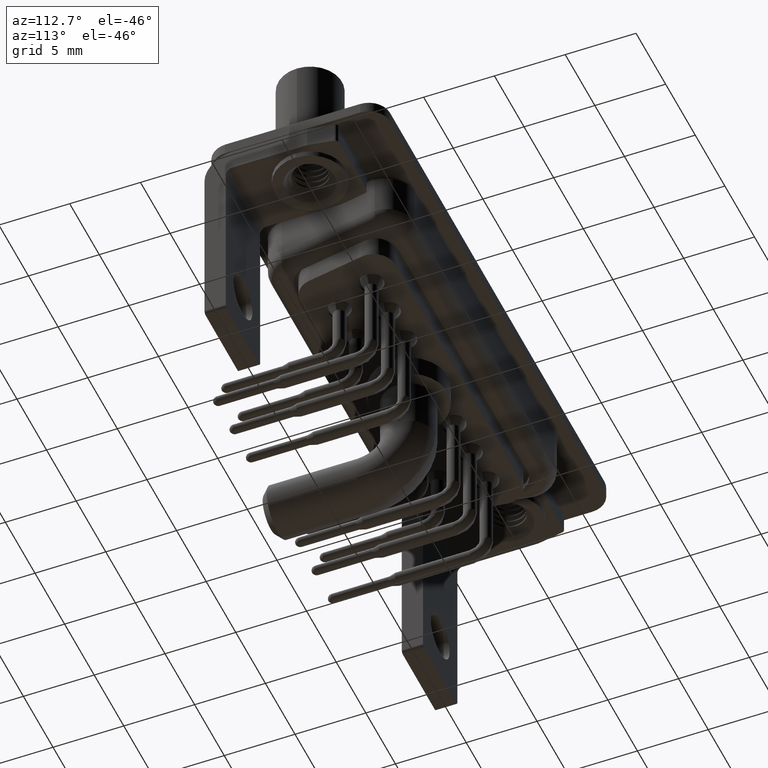
[diagram: clean part render]
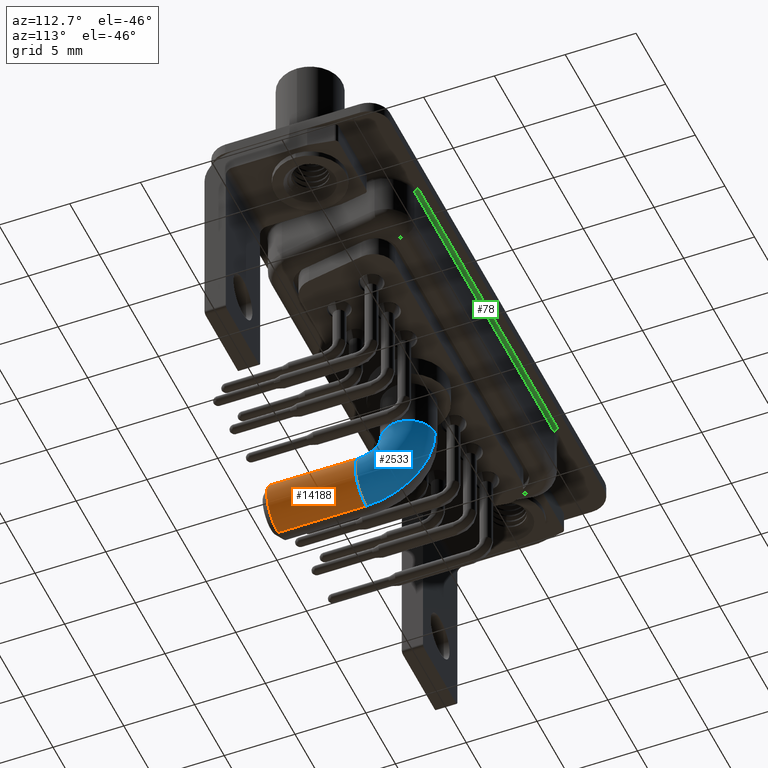
[diagram: same view with three faces highlighted in distinct colors, each labeled with its STEP entity id]
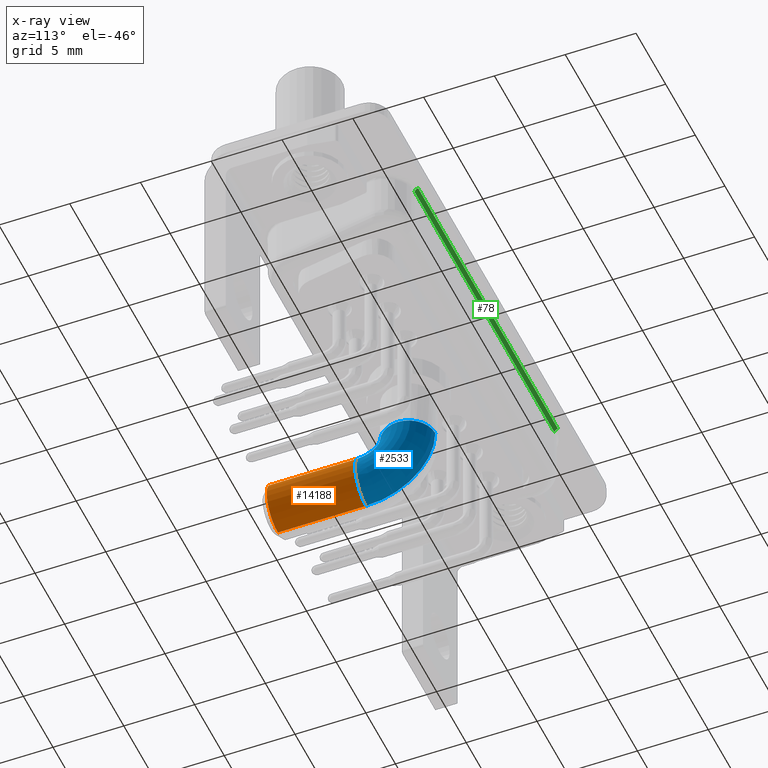
[diagram: x-ray of the same camera — body ghosted, the three highlighted faces saturated]
A machine part, auxiliary view with three faces highlighted in distinct colors.
The next image is the same camera in x-ray (body ghosted, the three faces saturated) — at least one of them is partly hidden behind the body in this view.
Their STEP definitions:

[orange] entity #14188 — the highlighted cylindrical surface (edge-blend (fillet) strip) has radius 1.875 mm, axis along (0, -1, 0).
#185 = CARTESIAN_POINT ( 'NONE',  ( 0.0000000000000000000, -2.999999999999999556, -6.500000000000000888 ) ) ;
#948 = CARTESIAN_POINT ( 'NONE',  ( 0.0000000000000000000, -9.249999999999994671, -8.375000000000000000 ) ) ;
#1247 = CIRCLE ( 'NONE', #11207, 1.875000000000000000 ) ;
#1754 = DIRECTION ( 'NONE',  ( 0.0000000000000000000, -1.000000000000000000, 0.0000000000000000000 ) ) ;
#1806 = AXIS2_PLACEMENT_3D ( 'NONE', #6255, #4747, #4966 ) ;
#3117 = VECTOR ( 'NONE', #1754, 1000.000000000000000 ) ;
#3439 = AXIS2_PLACEMENT_3D ( 'NONE', #185, #3850, #8352 ) ;
#3652 = DIRECTION ( 'NONE',  ( -1.000000000000000000, 0.0000000000000000000, 0.0000000000000000000 ) ) ;
#3850 = DIRECTION ( 'NONE',  ( 0.0000000000000000000, -1.000000000000000000, 0.0000000000000000000 ) ) ;
#4747 = DIRECTION ( 'NONE',  ( 0.0000000000000000000, 1.000000000000000000, 0.0000000000000000000 ) ) ;
#4966 = DIRECTION ( 'NONE',  ( 0.0000000000000000000, 0.0000000000000000000, -1.000000000000000000 ) ) ;
#5358 = DIRECTION ( 'NONE',  ( 0.0000000000000000000, -1.000000000000000000, -1.445602896647338917E-16 ) ) ;
#5463 = CARTESIAN_POINT ( 'NONE',  ( 0.0000000000000000000, -2.999999999999999112, -8.375000000000000000 ) ) ;
#6255 = CARTESIAN_POINT ( 'NONE',  ( 0.0000000000000000000, -9.249999999999994671, -6.500000000000000888 ) ) ;
#6430 = CARTESIAN_POINT ( 'NONE',  ( 2.296212748401286986E-16, -9.249999999999994671, -4.625000000000000888 ) ) ;
#7806 = ORIENTED_EDGE ( 'NONE', *, *, #19845, .F. ) ;
#8104 = LINE ( 'NONE', #17662, #15588 ) ;
#8352 = DIRECTION ( 'NONE',  ( 0.0000000000000000000, 0.0000000000000000000, -1.000000000000000000 ) ) ;
#8470 = CARTESIAN_POINT ( 'NONE',  ( 0.0000000000000000000, -2.999999999999999556, -6.500000000000000888 ) ) ;
#8471 = VERTEX_POINT ( 'NONE', #5463 ) ;
#9112 = LINE ( 'NONE', #18054, #3117 ) ;
#9942 = EDGE_CURVE ( 'NONE', #8471, #12702, #1247, .T. ) ;
#11081 = CIRCLE ( 'NONE', #1806, 1.875000000000000000 ) ;
#11146 = CARTESIAN_POINT ( 'NONE',  ( 2.296212748401286986E-16, -3.000000000000000000, -4.625000000000000888 ) ) ;
#11207 = AXIS2_PLACEMENT_3D ( 'NONE', #8470, #5358, #3652 ) ;
#11236 = DIRECTION ( 'NONE',  ( 0.0000000000000000000, -1.000000000000000000, 0.0000000000000000000 ) ) ;
#11315 = ORIENTED_EDGE ( 'NONE', *, *, #18404, .T. ) ;
#12702 = VERTEX_POINT ( 'NONE', #11146 ) ;
#14106 = EDGE_LOOP ( 'NONE', ( #17098, #20655, #11315, #7806 ) ) ;
#14188 = ADVANCED_FACE ( 'NONE', ( #18422 ), #20138, .T. ) ;
#14401 = EDGE_CURVE ( 'NONE', #12702, #18893, #9112, .T. ) ;
#15588 = VECTOR ( 'NONE', #11236, 1000.000000000000000 ) ;
#17098 = ORIENTED_EDGE ( 'NONE', *, *, #9942, .T. ) ;
#17662 = CARTESIAN_POINT ( 'NONE',  ( 0.0000000000000000000, -2.999999999999999556, -8.375000000000000000 ) ) ;
#18054 = CARTESIAN_POINT ( 'NONE',  ( 2.296212748401286986E-16, -2.999999999999999556, -4.625000000000000888 ) ) ;
#18404 = EDGE_CURVE ( 'NONE', #18893, #20537, #11081, .T. ) ;
#18422 = FACE_OUTER_BOUND ( 'NONE', #14106, .T. ) ;
#18893 = VERTEX_POINT ( 'NONE', #6430 ) ;
#19845 = EDGE_CURVE ( 'NONE', #8471, #20537, #8104, .T. ) ;
#20138 = CYLINDRICAL_SURFACE ( 'NONE', #3439, 1.875000000000000000 ) ;
#20537 = VERTEX_POINT ( 'NONE', #948 ) ;
#20655 = ORIENTED_EDGE ( 'NONE', *, *, #14401, .T. ) ;

[blue] entity #2533 — the highlighted toroidal blend (fillet) surface has major radius 3 mm and minor (blend) radius 1.875 mm.
#157 = EDGE_CURVE ( 'NONE', #268, #12702, #8166, .T. ) ;
#268 = VERTEX_POINT ( 'NONE', #7605 ) ;
#443 = DIRECTION ( 'NONE',  ( -1.000000000000000000, -0.0000000000000000000, 0.0000000000000000000 ) ) ;
#515 = ORIENTED_EDGE ( 'NONE', *, *, #17521, .F. ) ;
#778 = AXIS2_PLACEMENT_3D ( 'NONE', #5198, #11656, #4990 ) ;
#1098 = CIRCLE ( 'NONE', #13115, 4.875000000000000888 ) ;
#1247 = CIRCLE ( 'NONE', #11207, 1.875000000000000000 ) ;
#2039 = AXIS2_PLACEMENT_3D ( 'NONE', #5505, #17184, #20386 ) ;
#2239 = ORIENTED_EDGE ( 'NONE', *, *, #9942, .F. ) ;
#2259 = DIRECTION ( 'NONE',  ( 0.0000000000000000000, 0.0000000000000000000, 1.000000000000000000 ) ) ;
#2533 = ADVANCED_FACE ( 'NONE', ( #20184 ), #11303, .T. ) ;
#3198 = CIRCLE ( 'NONE', #778, 1.875000000000000000 ) ;
#3652 = DIRECTION ( 'NONE',  ( -1.000000000000000000, 0.0000000000000000000, 0.0000000000000000000 ) ) ;
#4166 = CARTESIAN_POINT ( 'NONE',  ( 1.875000000000000000, 2.296212748401286986E-16, -3.499999999999999556 ) ) ;
#4990 = DIRECTION ( 'NONE',  ( -1.000000000000000000, 0.0000000000000000000, 0.0000000000000000000 ) ) ;
#5198 = CARTESIAN_POINT ( 'NONE',  ( 0.0000000000000000000, 0.0000000000000000000, -3.499999999999999556 ) ) ;
#5358 = DIRECTION ( 'NONE',  ( 0.0000000000000000000, -1.000000000000000000, -1.445602896647338917E-16 ) ) ;
#5463 = CARTESIAN_POINT ( 'NONE',  ( 0.0000000000000000000, -2.999999999999999112, -8.375000000000000000 ) ) ;
#5505 = CARTESIAN_POINT ( 'NONE',  ( 0.0000000000000000000, -3.000000000000000000, -3.499999999999999556 ) ) ;
#6995 = DIRECTION ( 'NONE',  ( 0.0000000000000000000, 0.0000000000000000000, 1.000000000000000000 ) ) ;
#7556 = EDGE_CURVE ( 'NONE', #20693, #16030, #3198, .T. ) ;
#7605 = CARTESIAN_POINT ( 'NONE',  ( 2.296212748401287479E-16, -1.875000000000000222, -3.499999999999999556 ) ) ;
#8166 = CIRCLE ( 'NONE', #14343, 1.125000000000000666 ) ;
#8470 = CARTESIAN_POINT ( 'NONE',  ( 0.0000000000000000000, -2.999999999999999556, -6.500000000000000888 ) ) ;
#8471 = VERTEX_POINT ( 'NONE', #5463 ) ;
#8605 = CARTESIAN_POINT ( 'NONE',  ( 0.0000000000000000000, -3.000000000000000000, -3.499999999999999556 ) ) ;
#9022 = DIRECTION ( 'NONE',  ( -1.000000000000000000, -0.0000000000000000000, 0.0000000000000000000 ) ) ;
#9236 = DIRECTION ( 'NONE',  ( -1.000000000000000000, 0.0000000000000000000, 0.0000000000000000000 ) ) ;
#9759 = CARTESIAN_POINT ( 'NONE',  ( 0.0000000000000000000, 1.875000000000000444, -3.499999999999999556 ) ) ;
#9942 = EDGE_CURVE ( 'NONE', #8471, #12702, #1247, .T. ) ;
#10633 = CARTESIAN_POINT ( 'NONE',  ( 2.296212748401286986E-16, -3.000000000000000000, -3.499999999999999556 ) ) ;
#11146 = CARTESIAN_POINT ( 'NONE',  ( 2.296212748401286986E-16, -3.000000000000000000, -4.625000000000000888 ) ) ;
#11207 = AXIS2_PLACEMENT_3D ( 'NONE', #8470, #5358, #3652 ) ;
#11303 = TOROIDAL_SURFACE ( 'NONE', #2039, 3.000000000000000444, 1.875000000000000000 ) ;
#11656 = DIRECTION ( 'NONE',  ( 0.0000000000000000000, 0.0000000000000000000, -1.000000000000000000 ) ) ;
#12360 = DIRECTION ( 'NONE',  ( 0.0000000000000000000, 0.0000000000000000000, -1.000000000000000000 ) ) ;
#12702 = VERTEX_POINT ( 'NONE', #11146 ) ;
#13115 = AXIS2_PLACEMENT_3D ( 'NONE', #8605, #443, #6995 ) ;
#13672 = EDGE_LOOP ( 'NONE', ( #515, #19004, #14430, #19998, #2239 ) ) ;
#13898 = EDGE_CURVE ( 'NONE', #16030, #268, #14412, .T. ) ;
#14343 = AXIS2_PLACEMENT_3D ( 'NONE', #10633, #9022, #2259 ) ;
#14412 = CIRCLE ( 'NONE', #15099, 1.875000000000000000 ) ;
#14430 = ORIENTED_EDGE ( 'NONE', *, *, #13898, .T. ) ;
#15099 = AXIS2_PLACEMENT_3D ( 'NONE', #20463, #12360, #9236 ) ;
#16030 = VERTEX_POINT ( 'NONE', #4166 ) ;
#17184 = DIRECTION ( 'NONE',  ( -1.000000000000000000, -0.0000000000000000000, 0.0000000000000000000 ) ) ;
#17521 = EDGE_CURVE ( 'NONE', #20693, #8471, #1098, .T. ) ;
#19004 = ORIENTED_EDGE ( 'NONE', *, *, #7556, .T. ) ;
#19998 = ORIENTED_EDGE ( 'NONE', *, *, #157, .T. ) ;
#20184 = FACE_OUTER_BOUND ( 'NONE', #13672, .T. ) ;
#20386 = DIRECTION ( 'NONE',  ( 0.0000000000000000000, 0.0000000000000000000, 1.000000000000000000 ) ) ;
#20463 = CARTESIAN_POINT ( 'NONE',  ( 0.0000000000000000000, 0.0000000000000000000, -3.499999999999999556 ) ) ;
#20693 = VERTEX_POINT ( 'NONE', #9759 ) ;

[green] entity #78 — the highlighted cylindrical surface (edge-blend (fillet) strip) has radius 0.25 mm, axis along (1, -0, 0).
#7 = VECTOR ( 'NONE', #16921, 1000.000000000000000 ) ;
#78 = ADVANCED_FACE ( 'NONE', ( #15360 ), #12249, .F. ) ;
#342 = VERTEX_POINT ( 'NONE', #6103 ) ;
#448 = EDGE_LOOP ( 'NONE', ( #9987, #7407, #1881, #12582 ) ) ;
#1881 = ORIENTED_EDGE ( 'NONE', *, *, #11851, .F. ) ;
#2155 = VERTEX_POINT ( 'NONE', #11310 ) ;
#3157 = DIRECTION ( 'NONE',  ( 0.0000000000000000000, 0.0000000000000000000, -1.000000000000000000 ) ) ;
#4196 = EDGE_CURVE ( 'NONE', #2155, #16619, #17830, .T. ) ;
#5855 = AXIS2_PLACEMENT_3D ( 'NONE', #6516, #14902, #17992 ) ;
#6097 = AXIS2_PLACEMENT_3D ( 'NONE', #10325, #10221, #20158 ) ;
#6103 = CARTESIAN_POINT ( 'NONE',  ( 4.850000000000006750, 5.600000000000004086, -0.4000000000000000222 ) ) ;
#6516 = CARTESIAN_POINT ( 'NONE',  ( 28.45000000000000995, 5.600000000000001421, -0.6500000000000000222 ) ) ;
#6559 = EDGE_CURVE ( 'NONE', #10982, #16619, #12294, .T. ) ;
#7259 = CARTESIAN_POINT ( 'NONE',  ( -1.449999999999992184, 5.600000000000003197, -0.4000000000000000222 ) ) ;
#7407 = ORIENTED_EDGE ( 'NONE', *, *, #6559, .F. ) ;
#7517 = CARTESIAN_POINT ( 'NONE',  ( 4.850000000000006750, 5.350000000000007638, -0.6500000000000000222 ) ) ;
#7808 = CIRCLE ( 'NONE', #19091, 0.2500000000000000000 ) ;
#9987 = ORIENTED_EDGE ( 'NONE', *, *, #4196, .T. ) ;
#10221 = DIRECTION ( 'NONE',  ( 1.000000000000000000, -7.350523203291555004E-17, 0.0000000000000000000 ) ) ;
#10325 = CARTESIAN_POINT ( 'NONE',  ( 28.45000000000000995, 5.600000000000002309, -0.6500000000000000222 ) ) ;
#10893 = DIRECTION ( 'NONE',  ( 1.000000000000000000, -7.350523203291555004E-17, 0.0000000000000000000 ) ) ;
#10982 = VERTEX_POINT ( 'NONE', #7517 ) ;
#11310 = CARTESIAN_POINT ( 'NONE',  ( 28.45000000000000995, 5.600000000000002309, -0.4000000000000000222 ) ) ;
#11640 = DIRECTION ( 'NONE',  ( 1.000000000000000000, 0.0000000000000000000, -0.0000000000000000000 ) ) ;
#11679 = LINE ( 'NONE', #7259, #7 ) ;
#11851 = EDGE_CURVE ( 'NONE', #342, #10982, #7808, .T. ) ;
#11899 = CARTESIAN_POINT ( 'NONE',  ( 28.45000000000000995, 5.350000000000002309, -0.6500000000000000222 ) ) ;
#12249 = CYLINDRICAL_SURFACE ( 'NONE', #6097, 0.2500000000000002220 ) ;
#12294 = LINE ( 'NONE', #14098, #12814 ) ;
#12582 = ORIENTED_EDGE ( 'NONE', *, *, #16474, .F. ) ;
#12814 = VECTOR ( 'NONE', #10893, 1000.000000000000000 ) ;
#14098 = CARTESIAN_POINT ( 'NONE',  ( 28.45000000000000995, 5.350000000000002309, -0.6500000000000000222 ) ) ;
#14902 = DIRECTION ( 'NONE',  ( 1.000000000000000000, 0.0000000000000000000, -0.0000000000000000000 ) ) ;
#15360 = FACE_OUTER_BOUND ( 'NONE', #448, .T. ) ;
#16248 = CARTESIAN_POINT ( 'NONE',  ( 4.850000000000006750, 5.600000000000004086, -0.6500000000000000222 ) ) ;
#16474 = EDGE_CURVE ( 'NONE', #2155, #342, #11679, .T. ) ;
#16619 = VERTEX_POINT ( 'NONE', #11899 ) ;
#16921 = DIRECTION ( 'NONE',  ( -1.000000000000000000, 7.350523203291555004E-17, -0.0000000000000000000 ) ) ;
#17830 = CIRCLE ( 'NONE', #5855, 0.2500000000000000000 ) ;
#17992 = DIRECTION ( 'NONE',  ( 0.0000000000000000000, 0.0000000000000000000, -1.000000000000000000 ) ) ;
#19091 = AXIS2_PLACEMENT_3D ( 'NONE', #16248, #11640, #3157 ) ;
#20158 = DIRECTION ( 'NONE',  ( 0.0000000000000000000, 1.000000000000000000, 0.0000000000000000000 ) ) ;